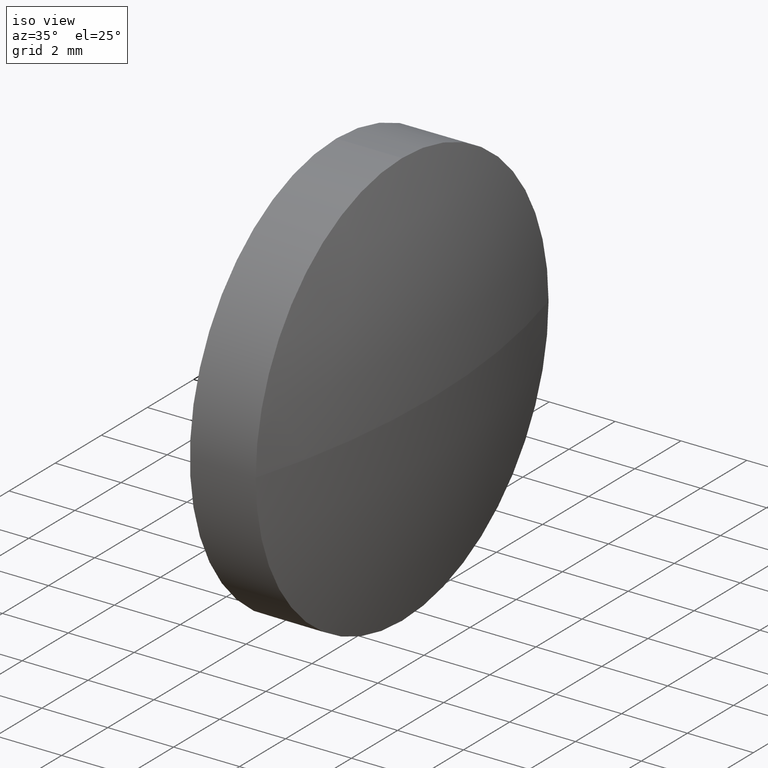
[diagram: clean part render]
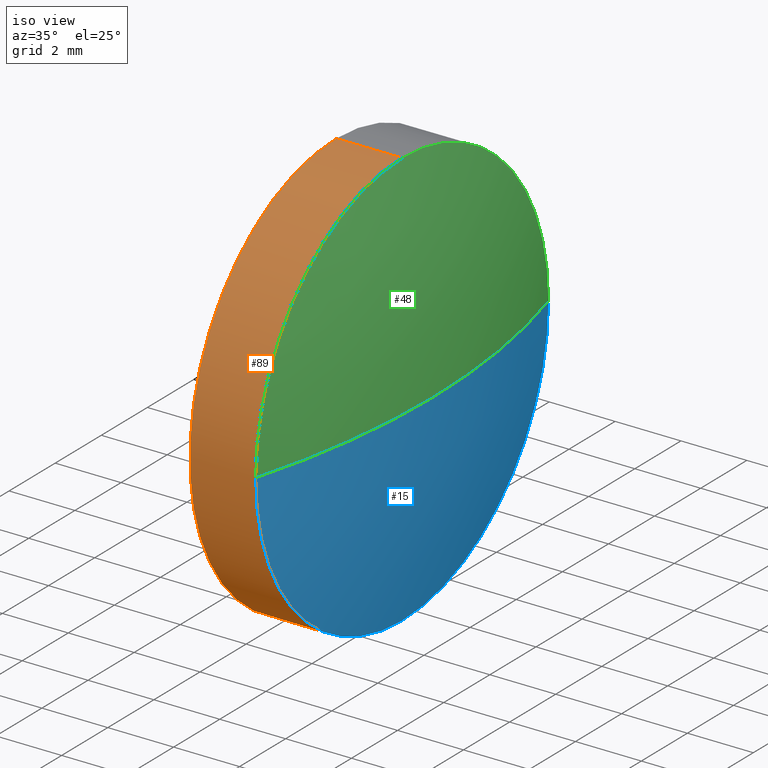
[diagram: same view with three faces highlighted in distinct colors, each labeled with its STEP entity id]
A machine part, iso view with three faces highlighted in distinct colors.
Their STEP definitions:

[orange] entity #89 — the highlighted cylindrical surface (partial cylindrical patch) has radius 6.35 mm, axis along (-1, -0, -0).
#7 = VERTEX_POINT ( 'NONE', #55 ) ;
#11 = DIRECTION ( 'NONE',  ( 0.0000000000000000000, 0.0000000000000000000, 1.000000000000000000 ) ) ;
#12 = AXIS2_PLACEMENT_3D ( 'NONE', #185, #82, #125 ) ;
#18 = DIRECTION ( 'NONE',  ( -1.000000000000000000, -0.0000000000000000000, -0.0000000000000000000 ) ) ;
#19 = DIRECTION ( 'NONE',  ( -1.000000000000000000, -0.0000000000000000000, -0.0000000000000000000 ) ) ;
#20 = EDGE_LOOP ( 'NONE', ( #144, #33, #179, #24, #164 ) ) ;
#22 = EDGE_CURVE ( 'NONE', #119, #79, #165, .T. ) ;
#24 = ORIENTED_EDGE ( 'NONE', *, *, #63, .T. ) ;
#25 = DIRECTION ( 'NONE',  ( 0.0000000000000000000, 0.0000000000000000000, 1.000000000000000000 ) ) ;
#27 = CARTESIAN_POINT ( 'NONE',  ( 442.7273123846861700, -5.129459319946108500, 6.349999999999999600 ) ) ;
#32 = CYLINDRICAL_SURFACE ( 'NONE', #67, 6.349999999999999600 ) ;
#33 = ORIENTED_EDGE ( 'NONE', *, *, #50, .T. ) ;
#35 = EDGE_CURVE ( 'NONE', #62, #168, #58, .T. ) ;
#50 = EDGE_CURVE ( 'NONE', #62, #119, #175, .T. ) ;
#55 = CARTESIAN_POINT ( 'NONE',  ( 440.7273123846862900, -5.129459319946108500, 6.349999999999999600 ) ) ;
#56 = CARTESIAN_POINT ( 'NONE',  ( 438.3992838946919600, -5.129459319946108500, 0.0000000000000000000 ) ) ;
#58 = LINE ( 'NONE', #59, #128 ) ;
#59 = CARTESIAN_POINT ( 'NONE',  ( 438.3992838946919600, -5.129459319946107600, -6.349999999999999600 ) ) ;
#61 = CARTESIAN_POINT ( 'NONE',  ( 440.7273123846862900, -5.129459319946107600, -6.349999999999999600 ) ) ;
#62 = VERTEX_POINT ( 'NONE', #101 ) ;
#63 = EDGE_CURVE ( 'NONE', #79, #7, #143, .T. ) ;
#67 = AXIS2_PLACEMENT_3D ( 'NONE', #56, #170, #25 ) ;
#72 = FACE_OUTER_BOUND ( 'NONE', #20, .T. ) ;
#79 = VERTEX_POINT ( 'NONE', #27 ) ;
#82 = DIRECTION ( 'NONE',  ( -1.000000000000000000, -0.0000000000000000000, -0.0000000000000000000 ) ) ;
#89 = ADVANCED_FACE ( 'NONE', ( #72 ), #32, .T. ) ;
#99 = DIRECTION ( 'NONE',  ( -1.000000000000000000, -0.0000000000000000000, -0.0000000000000000000 ) ) ;
#101 = CARTESIAN_POINT ( 'NONE',  ( 442.7273123846861700, -5.129459319946107600, -6.349999999999999600 ) ) ;
#103 = CARTESIAN_POINT ( 'NONE',  ( 442.7273123846861700, -5.129459319946108500, 0.0000000000000000000 ) ) ;
#104 = CARTESIAN_POINT ( 'NONE',  ( 442.7273123846861700, -11.47945931994604700, 0.0000000000000000000 ) ) ;
#106 = VECTOR ( 'NONE', #19, 1000.000000000000000 ) ;
#108 = AXIS2_PLACEMENT_3D ( 'NONE', #103, #153, #124 ) ;
#111 = CIRCLE ( 'NONE', #12, 6.349999999999999600 ) ;
#115 = CARTESIAN_POINT ( 'NONE',  ( 442.7273123846861700, -5.129459319946108500, 0.0000000000000000000 ) ) ;
#119 = VERTEX_POINT ( 'NONE', #104 ) ;
#124 = DIRECTION ( 'NONE',  ( 0.0000000000000000000, 0.0000000000000000000, 1.000000000000000000 ) ) ;
#125 = DIRECTION ( 'NONE',  ( 0.0000000000000000000, 0.0000000000000000000, 1.000000000000000000 ) ) ;
#128 = VECTOR ( 'NONE', #18, 1000.000000000000000 ) ;
#143 = LINE ( 'NONE', #154, #106 ) ;
#144 = ORIENTED_EDGE ( 'NONE', *, *, #35, .F. ) ;
#149 = AXIS2_PLACEMENT_3D ( 'NONE', #115, #99, #11 ) ;
#153 = DIRECTION ( 'NONE',  ( -1.000000000000000000, -0.0000000000000000000, -0.0000000000000000000 ) ) ;
#154 = CARTESIAN_POINT ( 'NONE',  ( 438.3992838946919600, -5.129459319946108500, 6.349999999999999600 ) ) ;
#164 = ORIENTED_EDGE ( 'NONE', *, *, #186, .F. ) ;
#165 = CIRCLE ( 'NONE', #108, 6.349999999999999600 ) ;
#168 = VERTEX_POINT ( 'NONE', #61 ) ;
#170 = DIRECTION ( 'NONE',  ( -1.000000000000000000, -0.0000000000000000000, -0.0000000000000000000 ) ) ;
#175 = CIRCLE ( 'NONE', #149, 6.349999999999999600 ) ;
#179 = ORIENTED_EDGE ( 'NONE', *, *, #22, .T. ) ;
#185 = CARTESIAN_POINT ( 'NONE',  ( 440.7273123846862900, -5.129459319946108500, 0.0000000000000000000 ) ) ;
#186 = EDGE_CURVE ( 'NONE', #168, #7, #111, .T. ) ;

[blue] entity #15 — the highlighted spherical surface has radius 22.8514 mm.
#11 = DIRECTION ( 'NONE',  ( 0.0000000000000000000, 0.0000000000000000000, 1.000000000000000000 ) ) ;
#14 = CARTESIAN_POINT ( 'NONE',  ( 420.7759234957979400, -5.129459319946038300, 0.0000000000000000000 ) ) ;
#15 = ADVANCED_FACE ( 'NONE', ( #21 ), #17, .T. ) ;
#16 = AXIS2_PLACEMENT_3D ( 'NONE', #88, #105, #47 ) ;
#17 = SPHERICAL_SURFACE ( 'NONE', #53, 22.85138888888821300 ) ;
#21 = FACE_OUTER_BOUND ( 'NONE', #90, .T. ) ;
#30 = DIRECTION ( 'NONE',  ( 0.0000000000000000000, 0.0000000000000000000, -1.000000000000000000 ) ) ;
#37 = AXIS2_PLACEMENT_3D ( 'NONE', #130, #159, #87 ) ;
#38 = CARTESIAN_POINT ( 'NONE',  ( 420.7759234957979400, -5.129459319946038300, 0.0000000000000000000 ) ) ;
#47 = DIRECTION ( 'NONE',  ( 0.0000000000000000000, -1.000000000000000000, -1.224646799147353200E-016 ) ) ;
#50 = EDGE_CURVE ( 'NONE', #62, #119, #175, .T. ) ;
#53 = AXIS2_PLACEMENT_3D ( 'NONE', #38, #180, #92 ) ;
#62 = VERTEX_POINT ( 'NONE', #101 ) ;
#83 = ORIENTED_EDGE ( 'NONE', *, *, #50, .F. ) ;
#84 = CIRCLE ( 'NONE', #16, 22.85138888888821300 ) ;
#87 = DIRECTION ( 'NONE',  ( 0.0000000000000000000, 0.0000000000000000000, 1.000000000000000000 ) ) ;
#88 = CARTESIAN_POINT ( 'NONE',  ( 420.7759234957979400, -5.129459319946038300, 0.0000000000000000000 ) ) ;
#90 = EDGE_LOOP ( 'NONE', ( #132, #110, #83, #148 ) ) ;
#91 = AXIS2_PLACEMENT_3D ( 'NONE', #14, #30, #117 ) ;
#92 = DIRECTION ( 'NONE',  ( 0.0000000000000000000, -1.000000000000000000, 0.0000000000000000000 ) ) ;
#99 = DIRECTION ( 'NONE',  ( -1.000000000000000000, -0.0000000000000000000, -0.0000000000000000000 ) ) ;
#100 = CIRCLE ( 'NONE', #91, 22.85138888888821300 ) ;
#101 = CARTESIAN_POINT ( 'NONE',  ( 442.7273123846861700, -5.129459319946107600, -6.349999999999999600 ) ) ;
#104 = CARTESIAN_POINT ( 'NONE',  ( 442.7273123846861700, -11.47945931994604700, 0.0000000000000000000 ) ) ;
#105 = DIRECTION ( 'NONE',  ( 0.0000000000000000000, -1.224646799147353200E-016, 1.000000000000000000 ) ) ;
#110 = ORIENTED_EDGE ( 'NONE', *, *, #151, .T. ) ;
#115 = CARTESIAN_POINT ( 'NONE',  ( 442.7273123846861700, -5.129459319946108500, 0.0000000000000000000 ) ) ;
#117 = DIRECTION ( 'NONE',  ( -1.000000000000000000, 0.0000000000000000000, 0.0000000000000000000 ) ) ;
#119 = VERTEX_POINT ( 'NONE', #104 ) ;
#127 = VERTEX_POINT ( 'NONE', #173 ) ;
#130 = CARTESIAN_POINT ( 'NONE',  ( 442.7273123846861700, -5.129459319946108500, 0.0000000000000000000 ) ) ;
#131 = CARTESIAN_POINT ( 'NONE',  ( 443.6273123846861500, -5.129459319946040100, 0.0000000000000000000 ) ) ;
#132 = ORIENTED_EDGE ( 'NONE', *, *, #163, .F. ) ;
#138 = VERTEX_POINT ( 'NONE', #131 ) ;
#147 = EDGE_CURVE ( 'NONE', #127, #62, #178, .T. ) ;
#148 = ORIENTED_EDGE ( 'NONE', *, *, #147, .F. ) ;
#149 = AXIS2_PLACEMENT_3D ( 'NONE', #115, #99, #11 ) ;
#151 = EDGE_CURVE ( 'NONE', #138, #119, #100, .T. ) ;
#159 = DIRECTION ( 'NONE',  ( -1.000000000000000000, -0.0000000000000000000, -0.0000000000000000000 ) ) ;
#163 = EDGE_CURVE ( 'NONE', #138, #127, #84, .T. ) ;
#173 = CARTESIAN_POINT ( 'NONE',  ( 442.7273123846861700, 1.220540680053899800, 7.776507174585617200E-016 ) ) ;
#175 = CIRCLE ( 'NONE', #149, 6.349999999999999600 ) ;
#178 = CIRCLE ( 'NONE', #37, 6.349999999999999600 ) ;
#180 = DIRECTION ( 'NONE',  ( 0.0000000000000000000, 0.0000000000000000000, 1.000000000000000000 ) ) ;

[green] entity #48 — the highlighted spherical surface has radius 22.8514 mm.
#14 = CARTESIAN_POINT ( 'NONE',  ( 420.7759234957979400, -5.129459319946038300, 0.0000000000000000000 ) ) ;
#16 = AXIS2_PLACEMENT_3D ( 'NONE', #88, #105, #47 ) ;
#22 = EDGE_CURVE ( 'NONE', #119, #79, #165, .T. ) ;
#26 = CIRCLE ( 'NONE', #177, 6.349999999999999600 ) ;
#27 = CARTESIAN_POINT ( 'NONE',  ( 442.7273123846861700, -5.129459319946108500, 6.349999999999999600 ) ) ;
#28 = DIRECTION ( 'NONE',  ( 0.0000000000000000000, 0.0000000000000000000, 1.000000000000000000 ) ) ;
#30 = DIRECTION ( 'NONE',  ( 0.0000000000000000000, 0.0000000000000000000, -1.000000000000000000 ) ) ;
#36 = ORIENTED_EDGE ( 'NONE', *, *, #151, .F. ) ;
#47 = DIRECTION ( 'NONE',  ( 0.0000000000000000000, -1.000000000000000000, -1.224646799147353200E-016 ) ) ;
#48 = ADVANCED_FACE ( 'NONE', ( #68 ), #141, .T. ) ;
#52 = ORIENTED_EDGE ( 'NONE', *, *, #163, .T. ) ;
#68 = FACE_OUTER_BOUND ( 'NONE', #123, .T. ) ;
#79 = VERTEX_POINT ( 'NONE', #27 ) ;
#84 = CIRCLE ( 'NONE', #16, 22.85138888888821300 ) ;
#88 = CARTESIAN_POINT ( 'NONE',  ( 420.7759234957979400, -5.129459319946038300, 0.0000000000000000000 ) ) ;
#91 = AXIS2_PLACEMENT_3D ( 'NONE', #14, #30, #117 ) ;
#100 = CIRCLE ( 'NONE', #91, 22.85138888888821300 ) ;
#103 = CARTESIAN_POINT ( 'NONE',  ( 442.7273123846861700, -5.129459319946108500, 0.0000000000000000000 ) ) ;
#104 = CARTESIAN_POINT ( 'NONE',  ( 442.7273123846861700, -11.47945931994604700, 0.0000000000000000000 ) ) ;
#105 = DIRECTION ( 'NONE',  ( 0.0000000000000000000, -1.224646799147353200E-016, 1.000000000000000000 ) ) ;
#108 = AXIS2_PLACEMENT_3D ( 'NONE', #103, #153, #124 ) ;
#113 = ORIENTED_EDGE ( 'NONE', *, *, #157, .F. ) ;
#114 = DIRECTION ( 'NONE',  ( 0.0000000000000000000, -1.000000000000000000, 0.0000000000000000000 ) ) ;
#117 = DIRECTION ( 'NONE',  ( -1.000000000000000000, 0.0000000000000000000, 0.0000000000000000000 ) ) ;
#119 = VERTEX_POINT ( 'NONE', #104 ) ;
#123 = EDGE_LOOP ( 'NONE', ( #36, #52, #113, #181 ) ) ;
#124 = DIRECTION ( 'NONE',  ( 0.0000000000000000000, 0.0000000000000000000, 1.000000000000000000 ) ) ;
#126 = CARTESIAN_POINT ( 'NONE',  ( 420.7759234957979400, -5.129459319946038300, 0.0000000000000000000 ) ) ;
#127 = VERTEX_POINT ( 'NONE', #173 ) ;
#131 = CARTESIAN_POINT ( 'NONE',  ( 443.6273123846861500, -5.129459319946040100, 0.0000000000000000000 ) ) ;
#134 = AXIS2_PLACEMENT_3D ( 'NONE', #126, #28, #114 ) ;
#138 = VERTEX_POINT ( 'NONE', #131 ) ;
#141 = SPHERICAL_SURFACE ( 'NONE', #134, 22.85138888888821300 ) ;
#151 = EDGE_CURVE ( 'NONE', #138, #119, #100, .T. ) ;
#153 = DIRECTION ( 'NONE',  ( -1.000000000000000000, -0.0000000000000000000, -0.0000000000000000000 ) ) ;
#156 = DIRECTION ( 'NONE',  ( -1.000000000000000000, -0.0000000000000000000, -0.0000000000000000000 ) ) ;
#157 = EDGE_CURVE ( 'NONE', #79, #127, #26, .T. ) ;
#160 = CARTESIAN_POINT ( 'NONE',  ( 442.7273123846861700, -5.129459319946108500, 0.0000000000000000000 ) ) ;
#163 = EDGE_CURVE ( 'NONE', #138, #127, #84, .T. ) ;
#165 = CIRCLE ( 'NONE', #108, 6.349999999999999600 ) ;
#173 = CARTESIAN_POINT ( 'NONE',  ( 442.7273123846861700, 1.220540680053899800, 7.776507174585617200E-016 ) ) ;
#174 = DIRECTION ( 'NONE',  ( 0.0000000000000000000, 0.0000000000000000000, 1.000000000000000000 ) ) ;
#177 = AXIS2_PLACEMENT_3D ( 'NONE', #160, #156, #174 ) ;
#181 = ORIENTED_EDGE ( 'NONE', *, *, #22, .F. ) ;